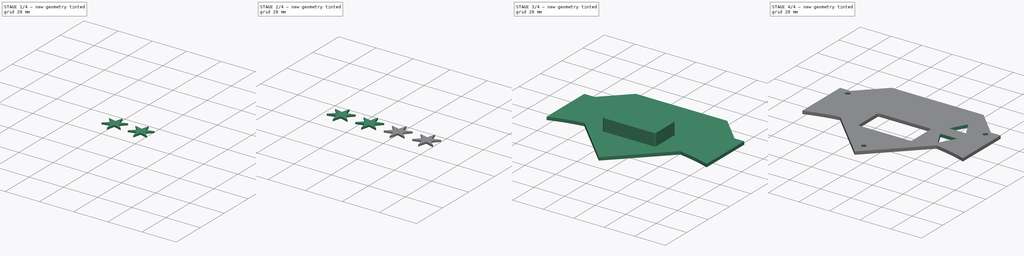
[diagram: build sequence overview — one tinted view per stage of 4, left to right]
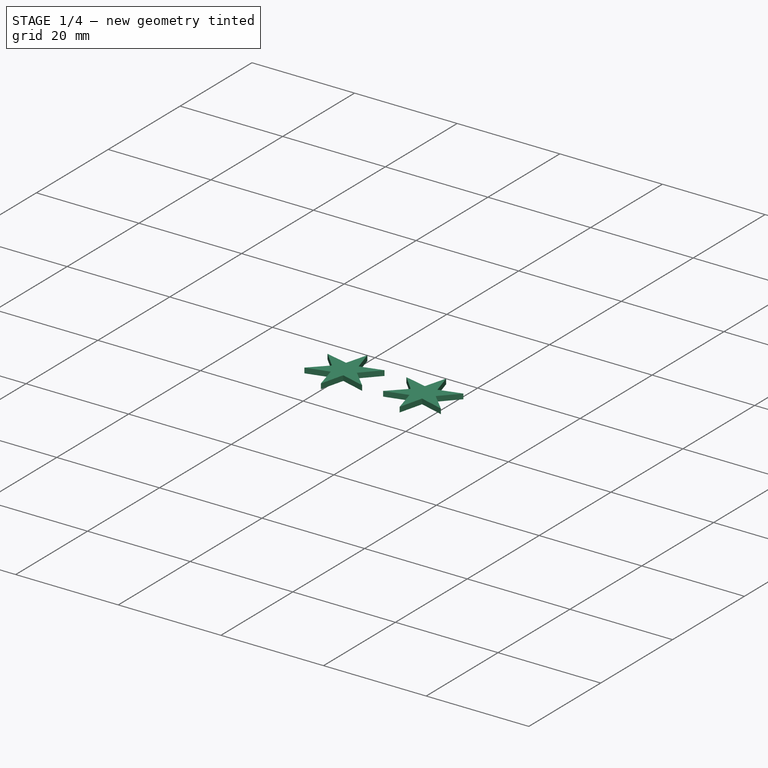
[diagram: stage 1 of 4 — iso view after this stage's code; geometry added in this stage tinted green]
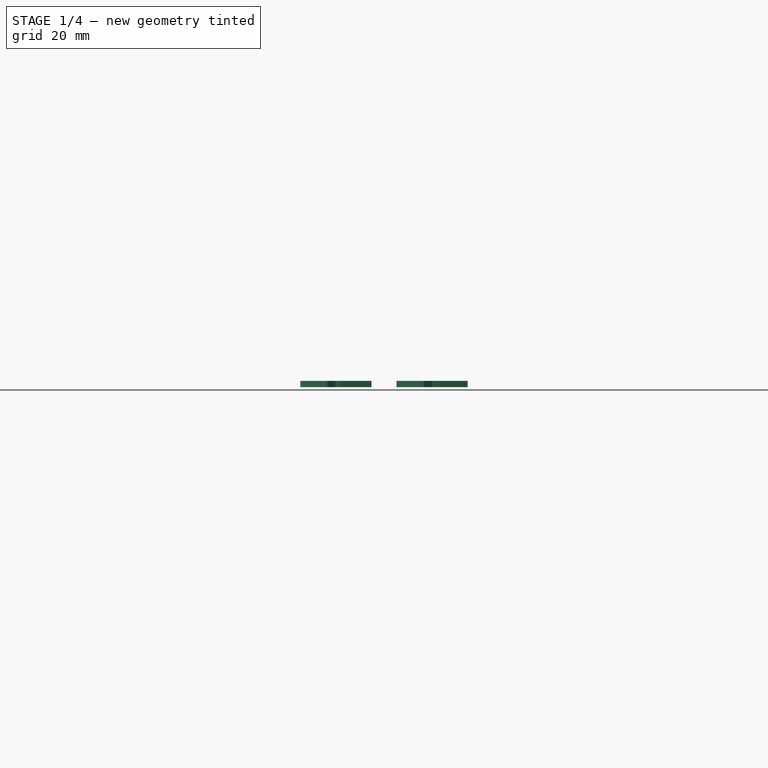
[diagram: stage 1 of 4 — front view after this stage's code; geometry added in this stage tinted green]
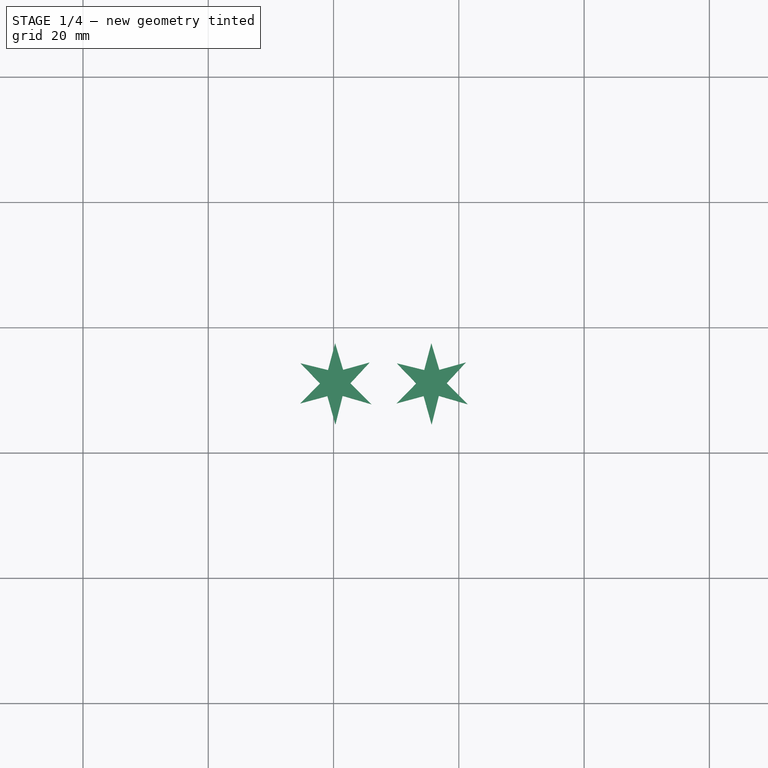
[diagram: stage 1 of 4 — top view after this stage's code; geometry added in this stage tinted green]
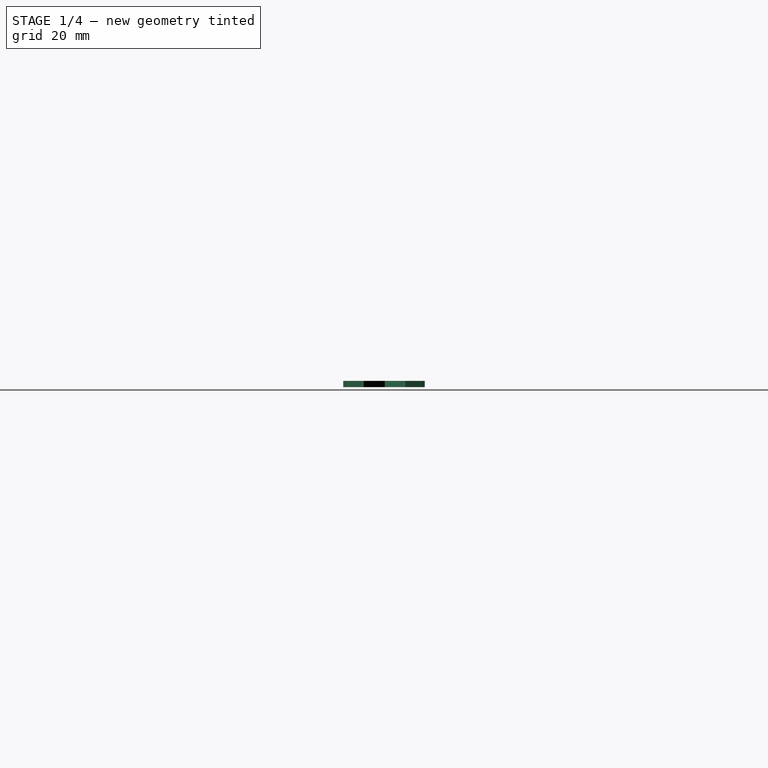
[diagram: stage 1 of 4 — right view after this stage's code; geometry added in this stage tinted green]
FCSTD DOCUMENT  (FreeCAD 0.21R33675 (Git))
Label: FrontPlate_BTC
License: All rights reserved
LicenseURL: http://en.wikipedia.org/wiki/All_rights_reserved
objects: Part::Feature×11, PartDesign::FeatureBase×6, PartDesign::Pad×6, PartDesign::Body×6, Sketcher::SketchObject×1, PartDesign::Pocket×1, Part::MultiFuse×1, Part::Cut×1, App::Part×1
note: 40 computed .brp shape members not serialized (recipe doc carries the construction recipe); baked Part::Feature solids carry a one-line shape summary decoded from their .brp

FEATURE [PartDesign::Body] Body003  label="Star2"
  BaseFeature = -> path943
  Group = -> [BaseFeature003,Pad003]
  Origin = -> Origin004
  Tip = -> Pad003
FEATURE [PartDesign::Pad] Pad004
  BaseFeature = -> BaseFeature004
  Direction = (0,0,-1)
  Length = 1
  Length2 = 10
  Profile = -> BaseFeature004
  Type = 0
FEATURE [PartDesign::Body] Body004  label="Star3"
  BaseFeature = -> path945
  Group = -> [BaseFeature004,Pad004]
  Origin = -> Origin005
  Tip = -> Pad004
FEATURE [PartDesign::Pad] Pad005
  BaseFeature = -> BaseFeature005
  Direction = (0,0,-1)
  Length = 1
  Length2 = 10
  Profile = -> BaseFeature005
  Type = 0
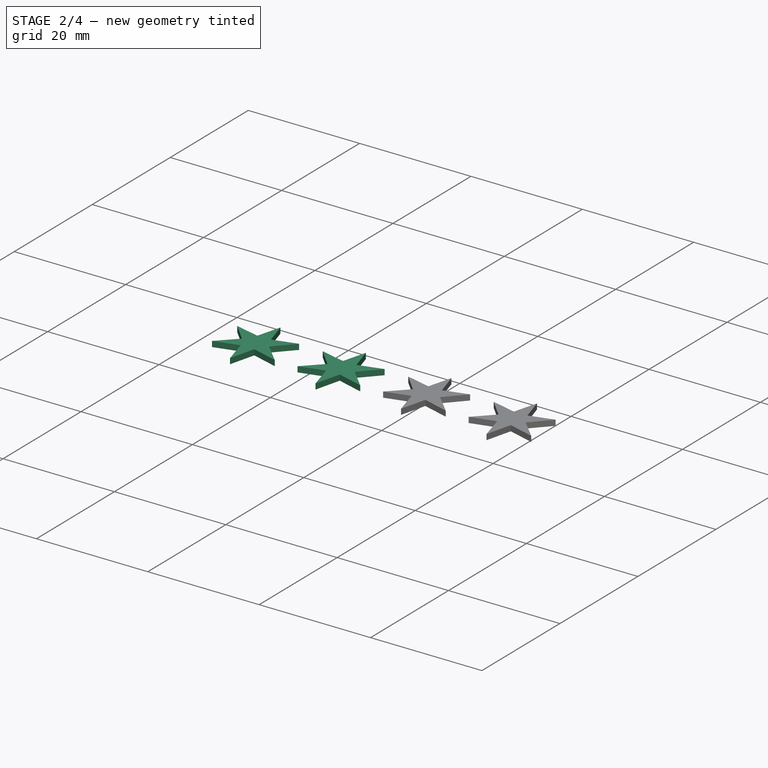
[diagram: stage 2 of 4 — iso view after this stage's code; geometry added in this stage tinted green]
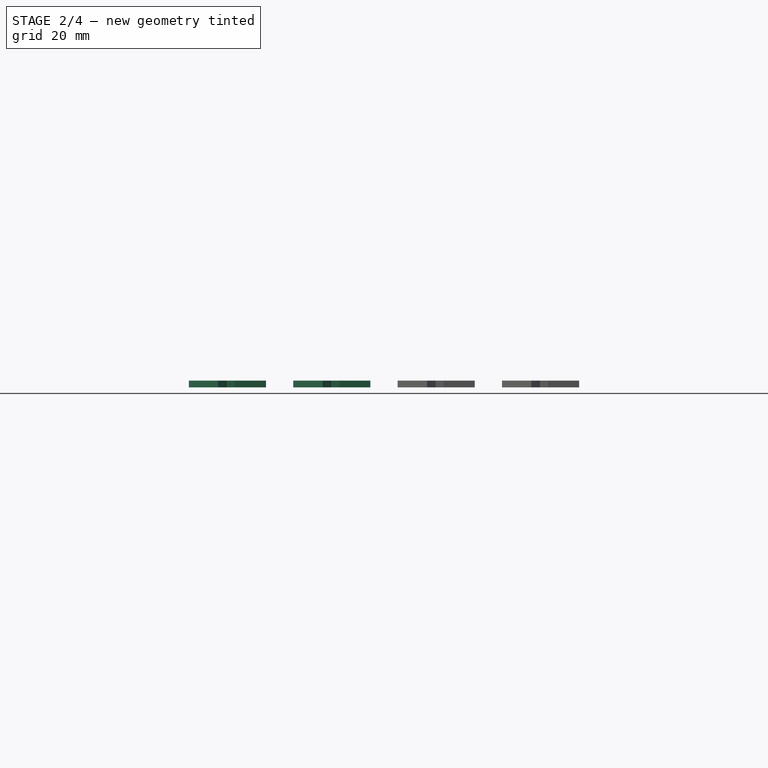
[diagram: stage 2 of 4 — front view after this stage's code; geometry added in this stage tinted green]
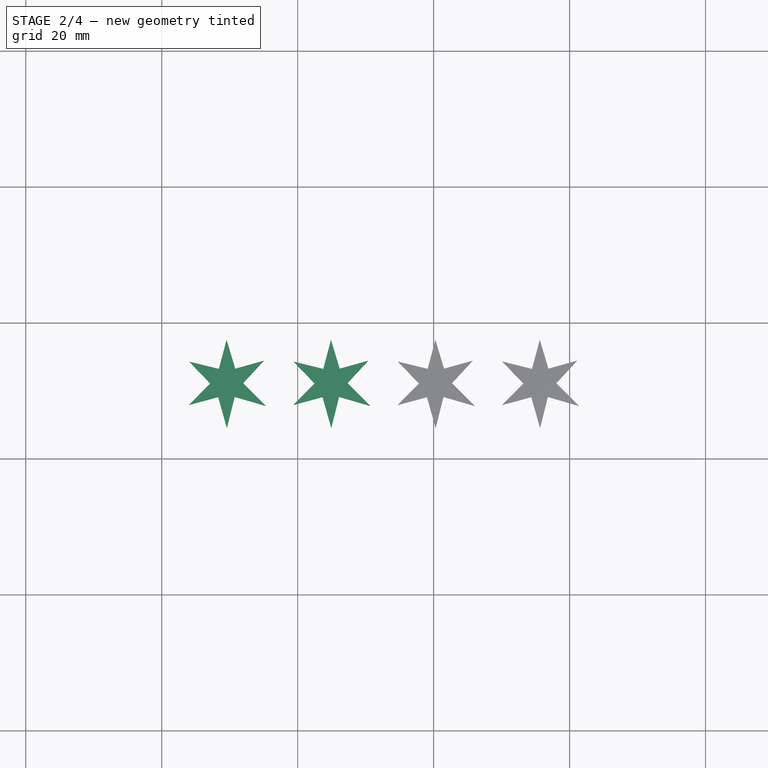
[diagram: stage 2 of 4 — top view after this stage's code; geometry added in this stage tinted green]
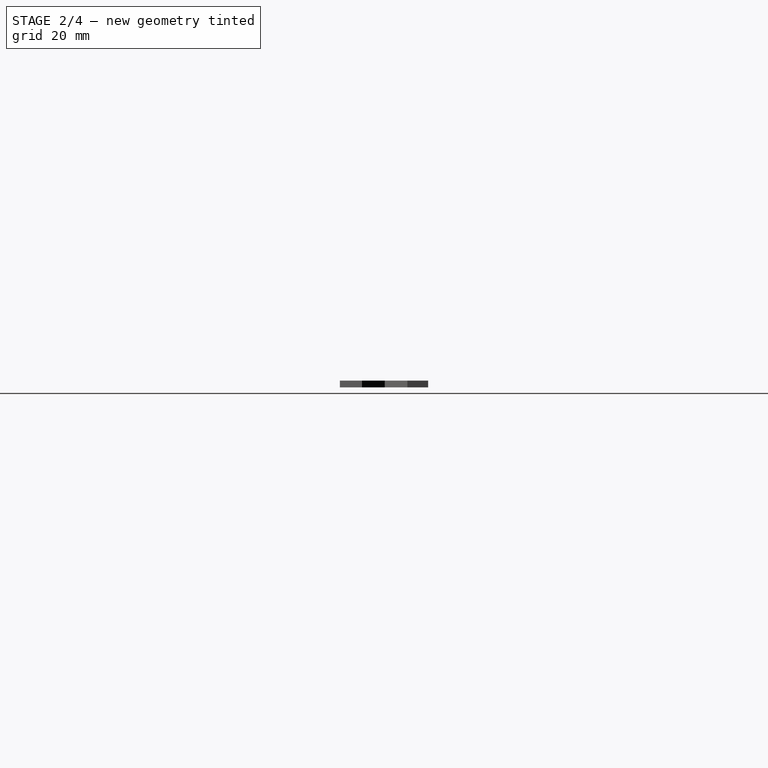
[diagram: stage 2 of 4 — right view after this stage's code; geometry added in this stage tinted green]
FEATURE [PartDesign::Body] Body  label="Outline"
  BaseFeature = -> path934
  Group = -> [BaseFeature,Sketch,Pad,Pocket]
  Origin = -> Origin001
  Tip = -> Pocket
FEATURE [PartDesign::FeatureBase] BaseFeature002
  BaseFeature = -> path941
FEATURE [PartDesign::Pad] Pad002
  BaseFeature = -> BaseFeature002
  Direction = (0,0,-1)
  Length = 1
  Length2 = 10
  Profile = -> BaseFeature002
  Type = 0
FEATURE [PartDesign::Body] Body002  label="Star1"
  BaseFeature = -> path941
  Group = -> [BaseFeature002,Pad002]
  Origin = -> Origin003
  Tip = -> Pad002
FEATURE [PartDesign::FeatureBase] BaseFeature003
  BaseFeature = -> path943
FEATURE [PartDesign::FeatureBase] BaseFeature004
  BaseFeature = -> path945
FEATURE [PartDesign::FeatureBase] BaseFeature005
  BaseFeature = -> path947
FEATURE [PartDesign::Pad] Pad003
  BaseFeature = -> BaseFeature003
  Direction = (0,0,-1)
  Length = 1
  Length2 = 10
  Profile = -> BaseFeature003
  Type = 0
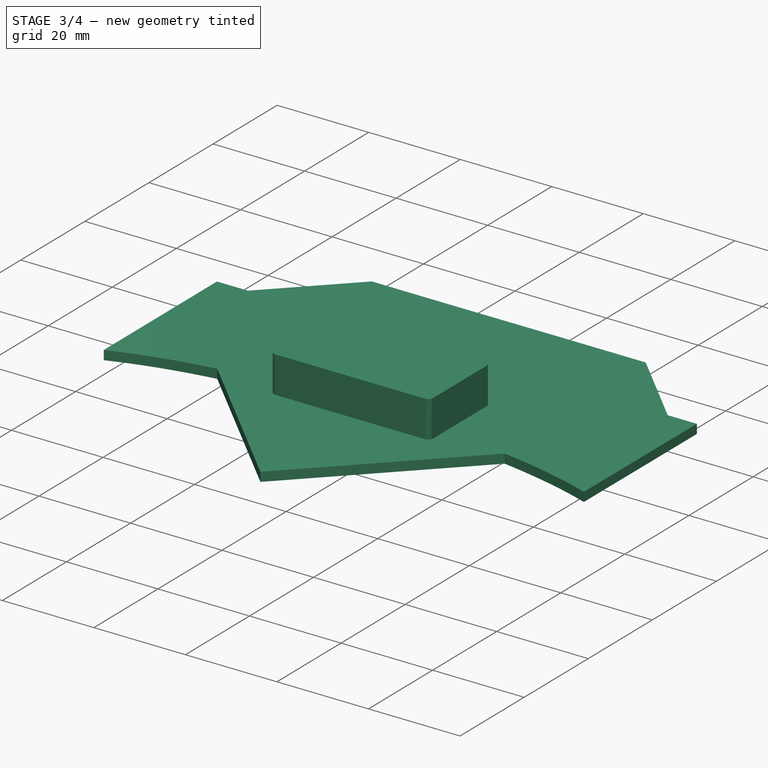
[diagram: stage 3 of 4 — iso view after this stage's code; geometry added in this stage tinted green]
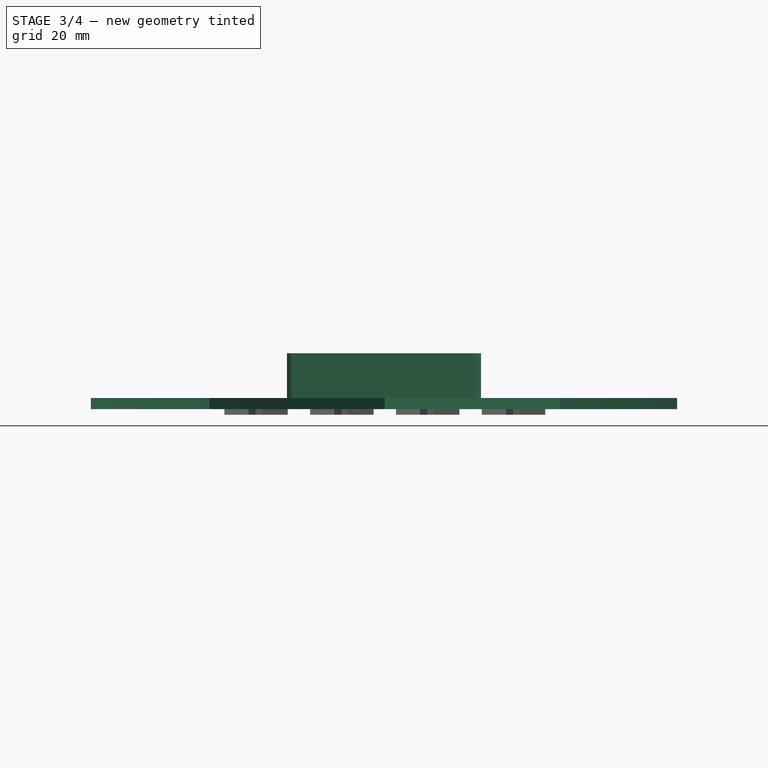
[diagram: stage 3 of 4 — front view after this stage's code; geometry added in this stage tinted green]
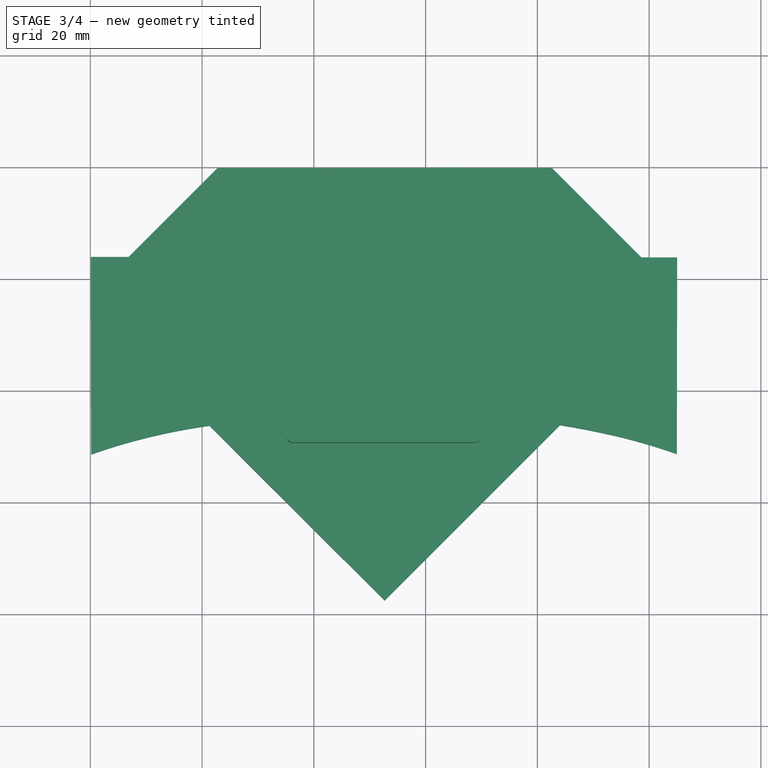
[diagram: stage 3 of 4 — top view after this stage's code; geometry added in this stage tinted green]
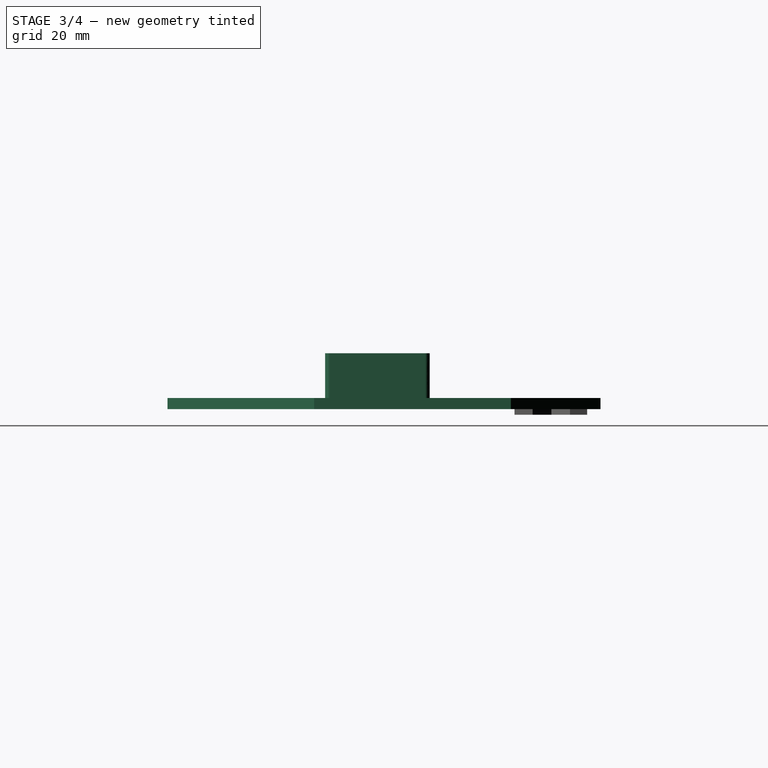
[diagram: stage 3 of 4 — right view after this stage's code; geometry added in this stage tinted green]
FEATURE [Part::Feature] path934
  shape: bbox 104.9 x 77.48 x 2e-07 mm, 0 faces, 0 solids (baked)
FEATURE [Part::Feature] rect328
  shape: bbox 34.73 x 18.73 x 2e-07 mm, 0 faces, 0 solids (baked)
FEATURE [Part::Feature] path91473
  Placement = pos=(60.2083,-129.19,0) rot=(0,0,1;0rad)
  shape: bbox 3.331 x 3.642 x 2e-07 mm, 0 faces, 0 solids (baked)
FEATURE [Part::Feature] circle92722
  Placement = pos=(150.208,-129.19,0) rot=(0,0,1;0rad)
  shape: bbox 3.331 x 3.642 x 2e-07 mm, 0 faces, 0 solids (baked)
FEATURE [Part::Feature] circle92724
  Placement = pos=(105.208,-178.382,0) rot=(0,0,1;0rad)
  shape: bbox 3.331 x 3.642 x 2e-07 mm, 0 faces, 0 solids (baked)
FEATURE [Part::Feature] path95217
  shape: bbox 10.96 x 10.01 x 2e-07 mm, 0 faces, 0 solids (baked)
FEATURE [Part::Feature] path95219
  shape: bbox 10.96 x 10.01 x 2e-07 mm, 0 faces, 0 solids (baked)
FEATURE [Part::Feature] path947
  shape: bbox 11.35 x 13 x 2e-07 mm, 1 faces, 0 solids (baked)
FEATURE [Part::Feature] path945
  shape: bbox 11.35 x 13 x 2e-07 mm, 1 faces, 0 solids (baked)
FEATURE [Part::Feature] path941
  shape: bbox 11.35 x 13 x 2e-07 mm, 1 faces, 0 solids (baked)
FEATURE [Part::Feature] path943
  shape: bbox 11.35 x 13 x 2e-07 mm, 1 faces, 0 solids (baked)
FEATURE [PartDesign::FeatureBase] BaseFeature001
  BaseFeature = -> rect328
FEATURE [PartDesign::Pad] Pad001
  BaseFeature = -> BaseFeature001
  Direction = (0,0,1)
  Length = 10
  Length2 = 10
  Profile = -> BaseFeature001
  Type = 0
FEATURE [PartDesign::Body] Body001  label="Screen"
  BaseFeature = -> rect328
  Group = -> [BaseFeature001,Pad001]
  Origin = -> Origin002
  Tip = -> Pad001
FEATURE [PartDesign::FeatureBase] BaseFeature
  BaseFeature = -> path934
FEATURE [Sketcher::SketchObject] Sketch
  FullyConstrained = true
  MapMode = 5
  Support = -> [XY_Plane001]
  sketch-geometry (9):
    g0: Circle CenterX=7.55 CenterY=-19.66 CenterZ=0 NormalX=0 NormalY=0 NormalZ=1 AngleXU=0 Radius=1.5
    g1: Circle CenterX=97.55 CenterY=-19.65 CenterZ=0 NormalX=0 NormalY=0 NormalZ=1 AngleXU=0 Radius=1.5
    g2: Circle CenterX=52.56 CenterY=-68.85 CenterZ=0 NormalX=0 NormalY=0 NormalZ=1 AngleXU=0 Radius=1.5
    g3: LineSegment StartX=77.33 StartY=-24.62 StartZ=0 EndX=88.3 EndY=-24.62 EndZ=0
    g4: LineSegment StartX=77.33 StartY=-24.62 StartZ=0 EndX=82.8 EndY=-14.59 EndZ=0
    g5: LineSegment StartX=82.8 StartY=-14.59 StartZ=0 EndX=88.3 EndY=-24.62 EndZ=0
    g6: LineSegment StartX=77.34 StartY=-32.89 StartZ=0 EndX=88.31 EndY=-32.89 EndZ=0
    g7: LineSegment StartX=88.31 StartY=-32.89 StartZ=0 EndX=82.78 EndY=-42.92 EndZ=0
    g8: LineSegment StartX=82.78 StartY=-42.92 StartZ=0 EndX=77.34 EndY=-32.89 EndZ=0
  constraints (27):
    c: Horizontal(g3)
    c: Coincident(g3,g4)
    c: Coincident(g4,g5)
    c: Coincident(g5,g3)
    c: Horizontal(g6)
    c: Coincident(g6,g7)
    c: Coincident(g7,g8)
    c: Coincident(g8,g6)
    c: DistanceX(g-1,g0) = 7.55
    c: DistanceX(g-1,g1) = 97.55
    c: DistanceY(g0,g-1) = 19.66
    c: DistanceY(g1,g-1) = 19.65
    c: DistanceX(g-1,g2) = 52.56
    c: DistanceY(g2,g-1) = 68.85
    c: DistanceX(g-1,g4) = 82.8
    c: DistanceX(g-1,g7) = 82.78
    c: DistanceX(g-1,g3) = 77.33
    c: Equal(g3,g6)
    c: DistanceY(g4,g-1) = 14.59
    c: DistanceY(g7,g-1) = 42.92
    c: DistanceY(g3,g-1) = 24.62
    c: DistanceY(g6,g-1) = 32.89
    c: DistanceX(g-1,g3) = 88.3
    c: DistanceX(g-1,g6) = 77.34
    c: Diameter(g1) = 3
    c: Diameter(g2) = 3
    c: Diameter(g0) = 3
FEATURE [PartDesign::Pad] Pad
  BaseFeature = -> BaseFeature
  Direction = (0,0,1)
  Length = 2
  Length2 = 10
  Profile = -> BaseFeature
  Type = 0
FEATURE [PartDesign::Body] Body005  label="Star4"
  BaseFeature = -> path947
  Group = -> [BaseFeature005,Pad005]
  Origin = -> Origin006
  Tip = -> Pad005
FEATURE [Part::MultiFuse] Fusion
  Shapes = -> [Body001,Body002,Body003,Body004,Body005]
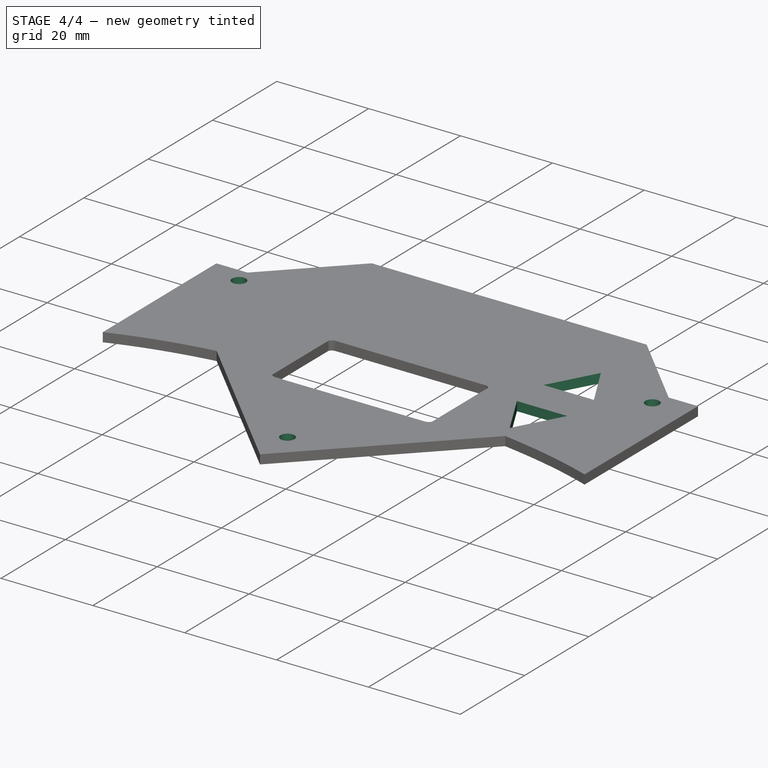
[diagram: stage 4 of 4 — iso view after this stage's code; geometry added in this stage tinted green]
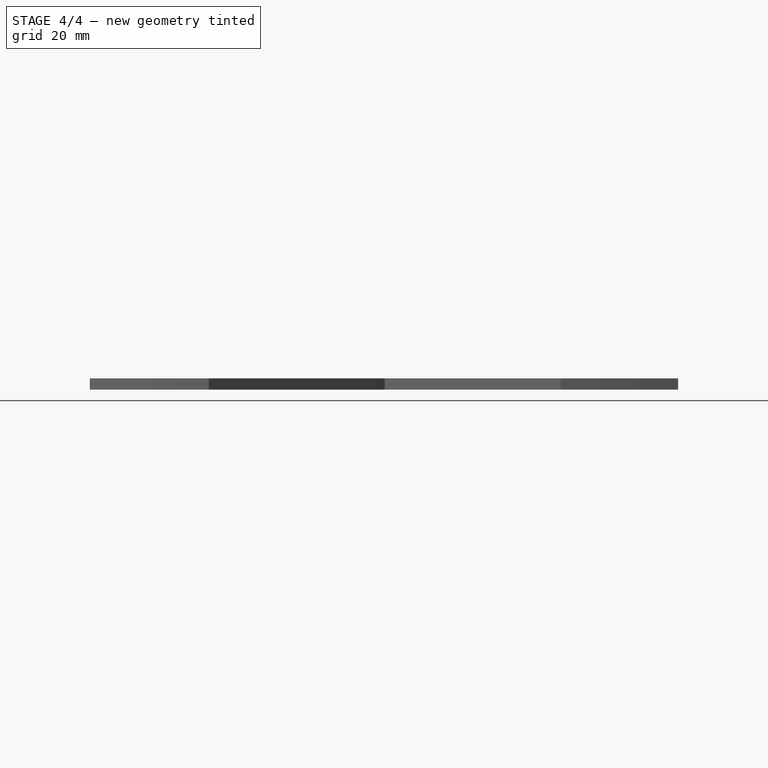
[diagram: stage 4 of 4 — front view after this stage's code; geometry added in this stage tinted green]
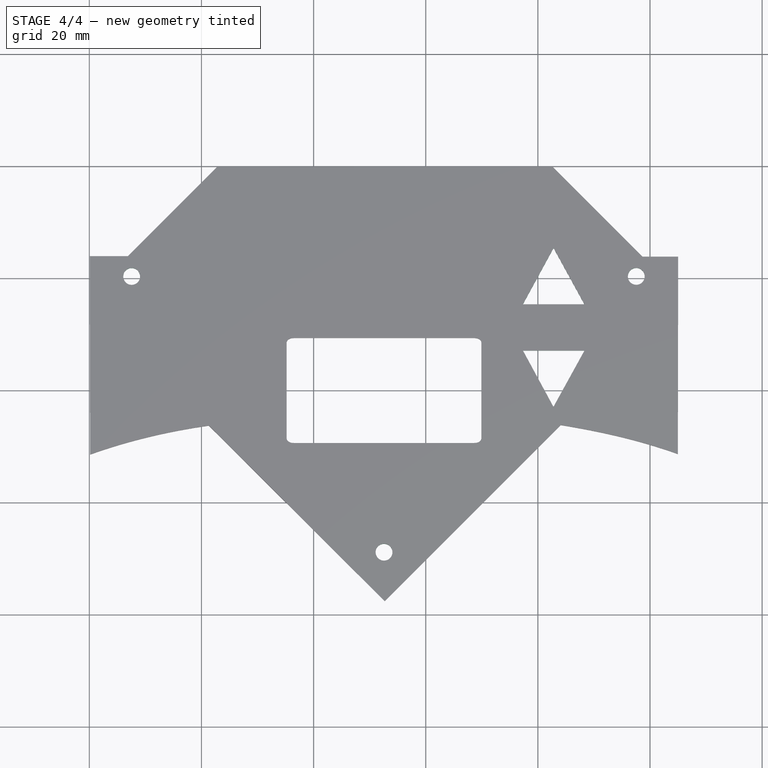
[diagram: stage 4 of 4 — top view after this stage's code; geometry added in this stage tinted green]
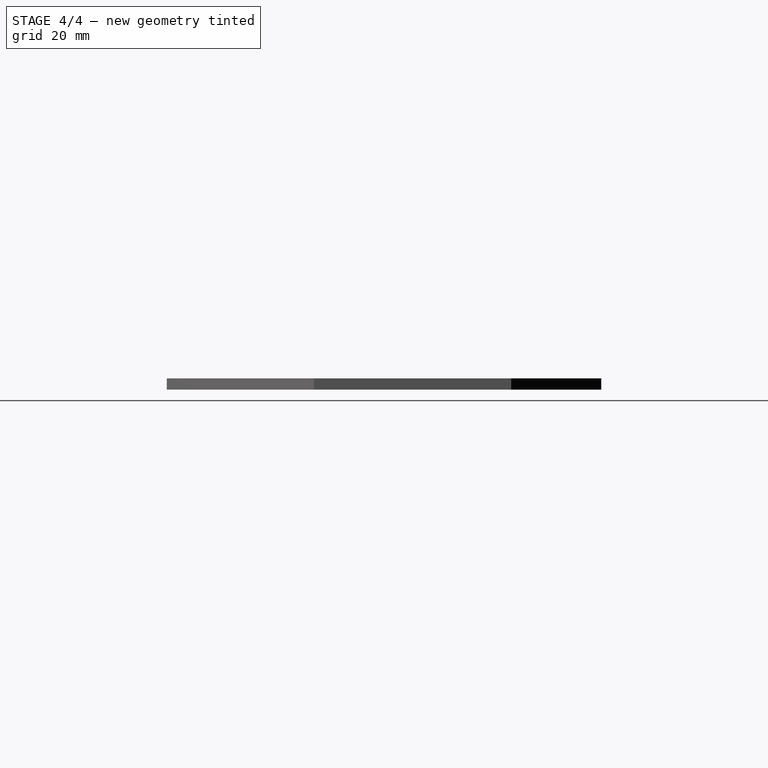
[diagram: stage 4 of 4 — right view after this stage's code; geometry added in this stage tinted green]
FEATURE [PartDesign::Pocket] Pocket
  BaseFeature = -> Pad
  Direction = (0,0,-1)
  Length = 8
  Length2 = 5
  Profile = -> Sketch
  ReferenceAxis = -> Sketch [N_Axis]
  Reversed = true
  Type = 0
FEATURE [Part::Cut] Cut
  Base = -> Body
  Tool = -> Fusion
FEATURE [App::Part] Part
  Group = -> [path945,Body002,path943,path941,path947,path934,Body001,rect328,Body003,Body,Body004,Fusion,Body005,Cut]
  Origin = -> Origin
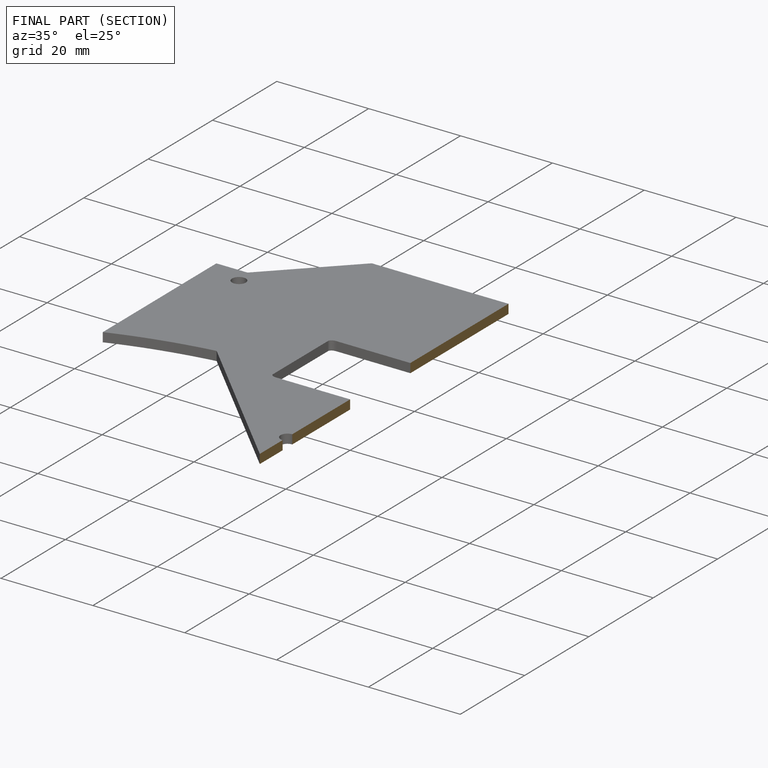
[diagram: finished part — half-section view (interior)]
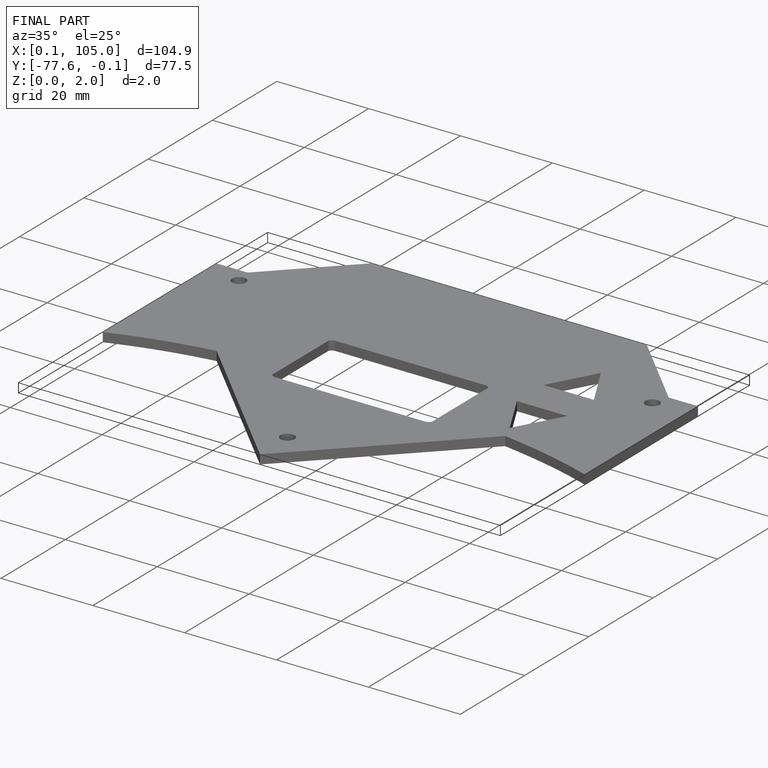
[diagram: finished part — iso view with bounding-box wireframe]
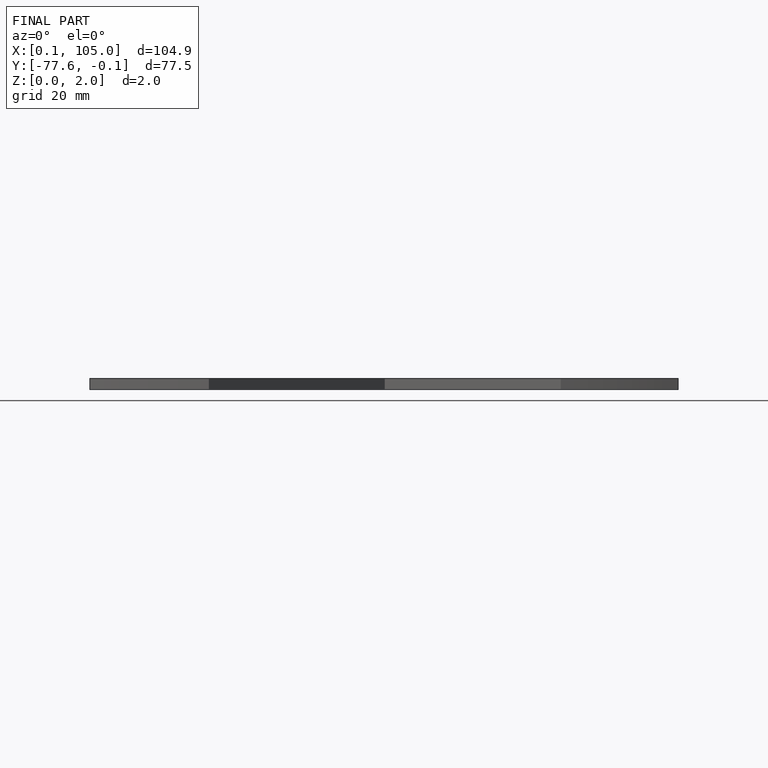
[diagram: finished part — front view with bounding-box wireframe]
